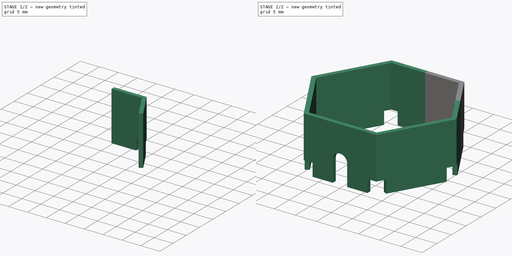
[diagram: build sequence overview — one tinted view per stage of 2, left to right]
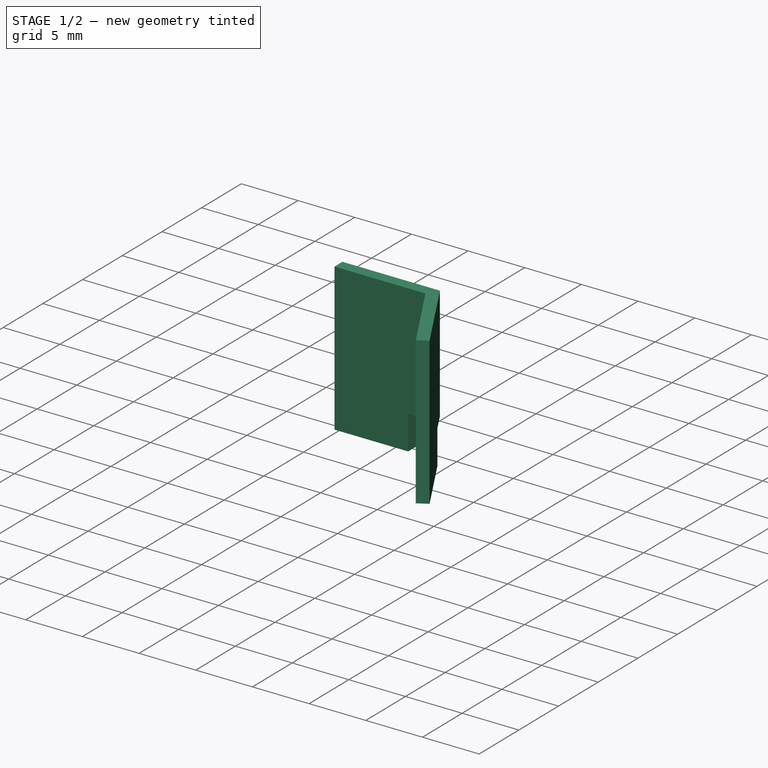
[diagram: stage 1 of 2 — iso view after this stage's code; geometry added in this stage tinted green]
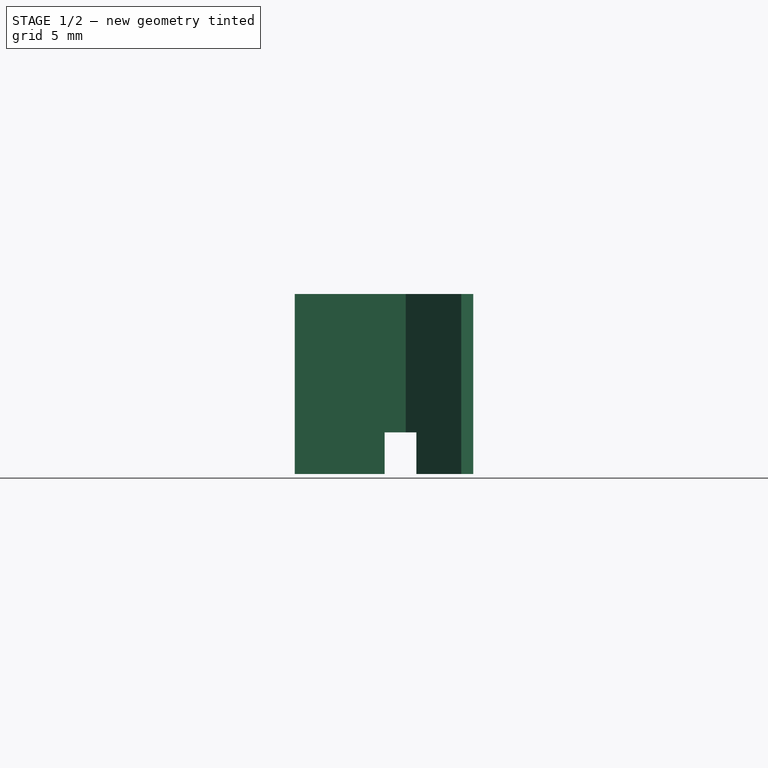
[diagram: stage 1 of 2 — front view after this stage's code; geometry added in this stage tinted green]
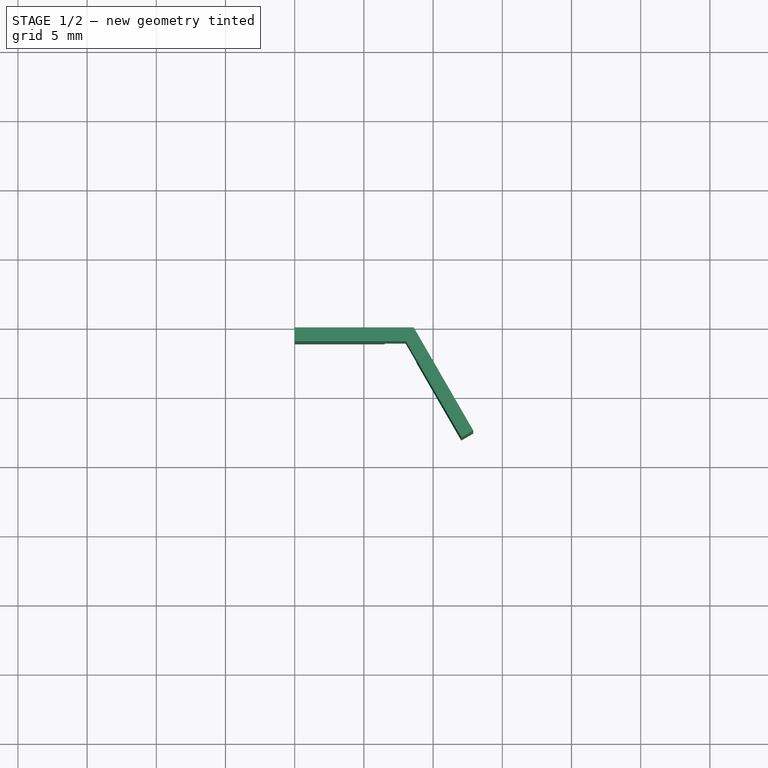
[diagram: stage 1 of 2 — top view after this stage's code; geometry added in this stage tinted green]
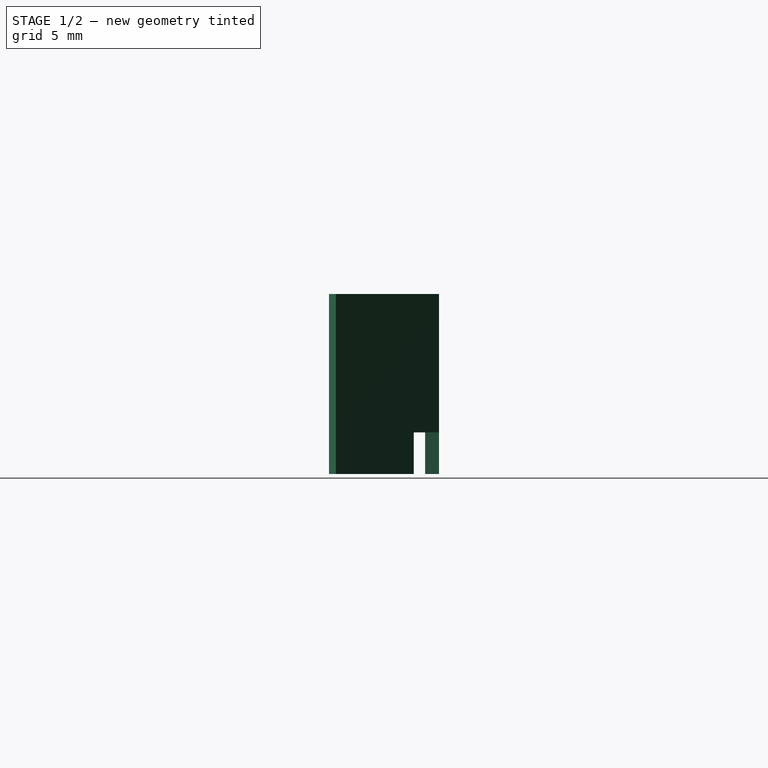
[diagram: stage 1 of 2 — right view after this stage's code; geometry added in this stage tinted green]
FCSTD DOCUMENT  (FreeCAD 0.19R23578 (Git))
Label: adapter1
License: All rights reserved
LicenseURL: http://en.wikipedia.org/wiki/All_rights_reserved
objects: Sketcher::SketchObject×3, PartDesign::Pocket×2, PartDesign::Pad×1, PartDesign::PolarPattern×1, PartDesign::Body×1
note: 11 computed .brp shape members not serialized (recipe doc carries the construction recipe); baked Part::Feature solids carry a one-line shape summary decoded from their .brp

FEATURE [Sketcher::SketchObject] Sketch
  MapMode = 5
  Support = -> [XY_Plane]
  sketch-geometry (21):
    g0: LineSegment StartX=17.205 StartY=1.8e-15 StartZ=0 EndX=8.60252 EndY=14.9 EndZ=0
    g1: LineSegment StartX=8.60252 StartY=14.9 StartZ=0 EndX=-8.60252 EndY=14.9 EndZ=0
    g2: LineSegment StartX=-8.60252 StartY=14.9 StartZ=0 EndX=-17.205 EndY=-1.8e-15 EndZ=0
    g3: LineSegment StartX=-17.205 StartY=-1.8e-15 StartZ=0 EndX=-8.60252 EndY=-14.9 EndZ=0
    g4: LineSegment StartX=-8.60252 StartY=-14.9 StartZ=0 EndX=8.60252 EndY=-14.9 EndZ=0
    g5: LineSegment StartX=8.60252 StartY=-14.9 StartZ=0 EndX=17.205 EndY=1.8e-15 EndZ=0
    g6: Circle CenterX=0 CenterY=0 CenterZ=0 NormalX=0 NormalY=0 NormalZ=1 AngleXU=0 Radius=17.205
    g7: LineSegment StartX=16.0503 StartY=0 StartZ=0 EndX=8.02517 EndY=13.9 EndZ=0
    g8: LineSegment StartX=8.02517 StartY=13.9 StartZ=0 EndX=-8.02517 EndY=13.9 EndZ=0
    g9: LineSegment StartX=-8.02517 StartY=13.9 StartZ=0 EndX=-16.0503 EndY=0 EndZ=0
    g10: LineSegment StartX=-16.0503 StartY=0 StartZ=0 EndX=-8.02517 EndY=-13.9 EndZ=0
    g11: LineSegment StartX=-8.02517 StartY=-13.9 StartZ=0 EndX=8.02517 EndY=-13.9 EndZ=0
    g12: LineSegment StartX=8.02517 StartY=-13.9 StartZ=0 EndX=16.0503 EndY=0 EndZ=0
    g13: Circle CenterX=0 CenterY=0 CenterZ=0 NormalX=0 NormalY=0 NormalZ=1 AngleXU=0 Radius=16.0503
    g14: LineSegment StartX=0 StartY=0 StartZ=0 EndX=12.9038 EndY=7.45 EndZ=0
    g15: LineSegment StartX=0 StartY=14.9 StartZ=0 EndX=8.60252 EndY=14.9 EndZ=0
    g16: LineSegment StartX=8.60252 StartY=14.9 StartZ=0 EndX=12.9038 EndY=7.45 EndZ=0
    g17: LineSegment StartX=12.9038 StartY=7.45 StartZ=0 EndX=12.0378 EndY=6.95 EndZ=0
    g18: LineSegment StartX=12.0378 StartY=6.95 StartZ=0 EndX=8.02517 EndY=13.9 EndZ=0
    g19: LineSegment StartX=8.02517 StartY=13.9 StartZ=0 EndX=0 EndY=13.9 EndZ=0
    g20: LineSegment StartX=0 StartY=13.9 StartZ=0 EndX=0 EndY=14.9 EndZ=0
  constraints (49):
    c: Coincident(g0,g1)
    c: Coincident(g1,g2)
    c: Coincident(g2,g3)
    c: Coincident(g3,g4)
    c: Coincident(g4,g5)
    c: Coincident(g5,g0)
    c: Equal(g0, g1-g5) x5
    c: PointOnObject(g0,g6)
    c: PointOnObject(g1,g6)
    c: PointOnObject(g2,g6)
    c: PointOnObject(g3,g6)
    c: PointOnObject(g4,g6)
    c: PointOnObject(g5,g6)
    c: Coincident(g6,g-1)
    c: PointOnObject(g5,g-1)
    c: DistanceY(g4,g0) = 29.8
    c: Coincident(g7,g8)
    c: Coincident(g8,g9)
    c: Coincident(g9,g10)
    c: Coincident(g10,g11)
    c: Coincident(g11,g12)
    c: Coincident(g12,g7)
    c: Equal(g7, g8-g12) x5
    c: PointOnObject(g7,g13)
    c: PointOnObject(g8,g13)
    c: PointOnObject(g9,g13)
    c: PointOnObject(g10,g13)
    c: PointOnObject(g11,g13)
    c: PointOnObject(g12,g13)
    c: Coincident(g13,g-1)
    c: PointOnObject(g12,g-1)
    c: DistanceY(g11,g7) = 27.8
    c: Coincident(g14,g-1)
    c: Symmetric(g0,g0,g14)
    c: PointOnObject(g15,g1)
    c: Coincident(g15,g0)
    c: Coincident(g15,g16)
    c: Coincident(g16,g14)
    c: Coincident(g16,g17)
    c: PointOnObject(g17,g14)
    c: Coincident(g17,g18)
    c: Coincident(g18,g19)
    c: PointOnObject(g19,g8)
    c: Coincident(g19,g20)
    c: Coincident(g20,g15)
    c: PointOnObject(g15,g-2)
    c: PointOnObject(g19,g-2)
    c: Coincident(g18,g7)
    c: PointOnObject(g17,g7)
FEATURE [PartDesign::Pad] Pad
  Direction = (1,1,1)
  Length = 13
  Length2 = 100
  Profile = -> Sketch
  Type = 0
FEATURE [Sketcher::SketchObject] Sketch001
  ExternalGeometry = -> [Pad]
  MapMode = 5
  Support = -> [XY_Plane]
  expr: Constraints[6] = 13 / 2
  sketch-geometry (4):
    g0: LineSegment StartX=6.5 StartY=11.2583 StartZ=0 EndX=11.7753 EndY=14.304 EndZ=0
    g1: LineSegment StartX=11.7753 StartY=14.304 StartZ=0 EndX=6.5 EndY=17.3497 EndZ=0
    g2: LineSegment StartX=6.5 StartY=17.3497 StartZ=0 EndX=6.5 EndY=11.2583 EndZ=0
    g3: LineSegment StartX=0 StartY=0 StartZ=0 EndX=8.60252 EndY=14.9 EndZ=0
  constraints (10):
    c: Coincident(g0,g1)
    c: Coincident(g1,g2)
    c: Coincident(g2,g0)
    c: Equal(g0,g1)
    c: Equal(g1,g2)
    c: Perpendicular(g-4,g0)
    c: DistanceX(g-1,g0) = 6.5
    c: Coincident(g3,g-1)
    c: Coincident(g3,g-4)
    c: PointOnObject(g0,g3)
FEATURE [PartDesign::Pocket] Pocket
  BaseFeature = -> Pad
  Length = 3
  Length2 = 100
  Profile = -> Sketch001
  Reversed = true
  Type = 0
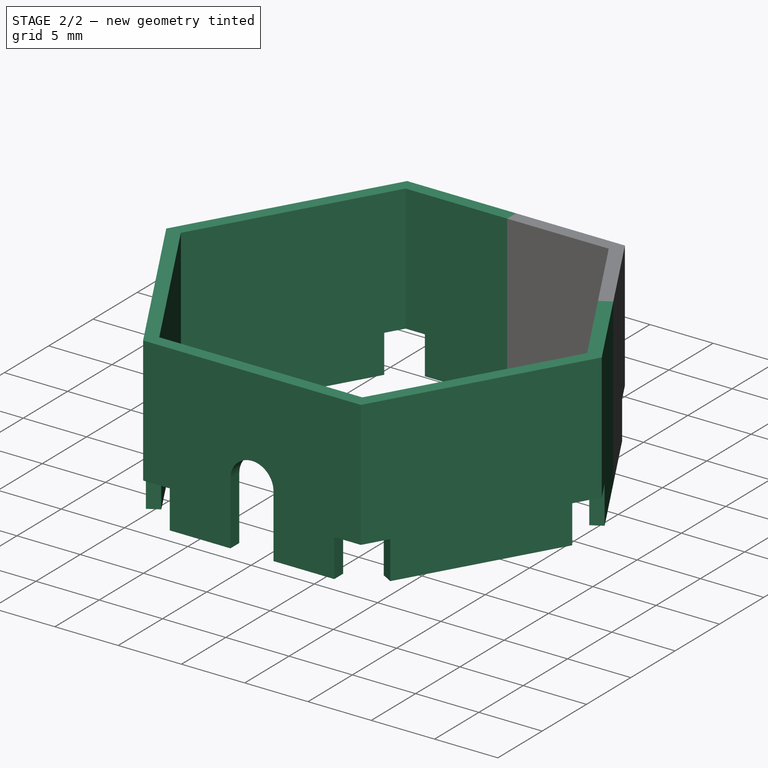
[diagram: stage 2 of 2 — iso view after this stage's code; geometry added in this stage tinted green]
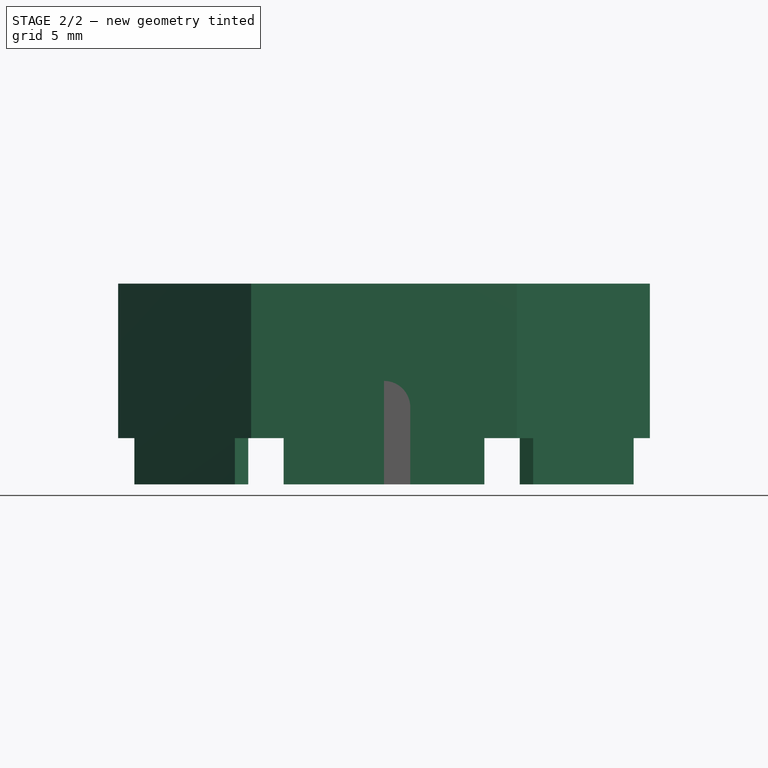
[diagram: stage 2 of 2 — front view after this stage's code; geometry added in this stage tinted green]
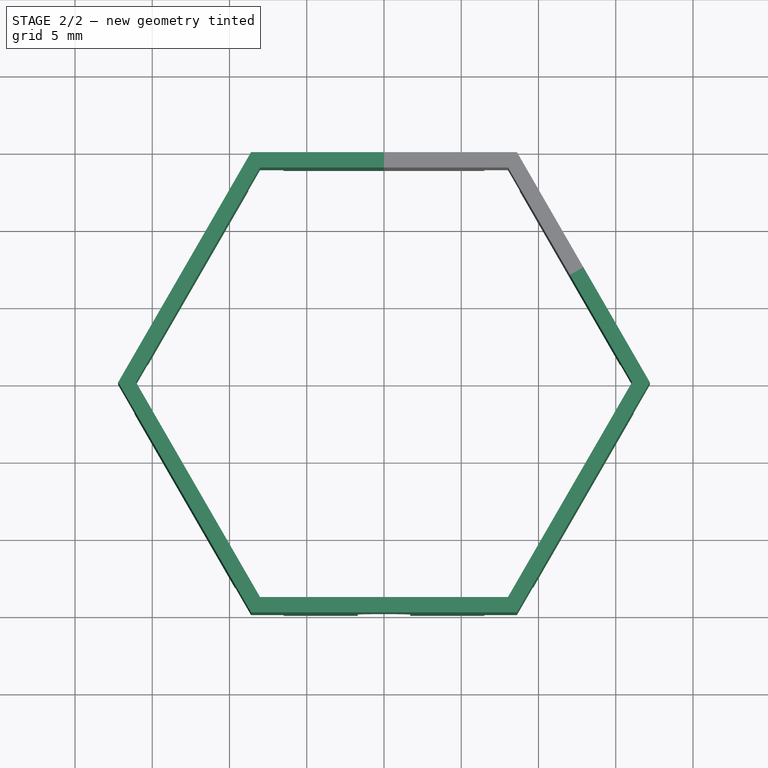
[diagram: stage 2 of 2 — top view after this stage's code; geometry added in this stage tinted green]
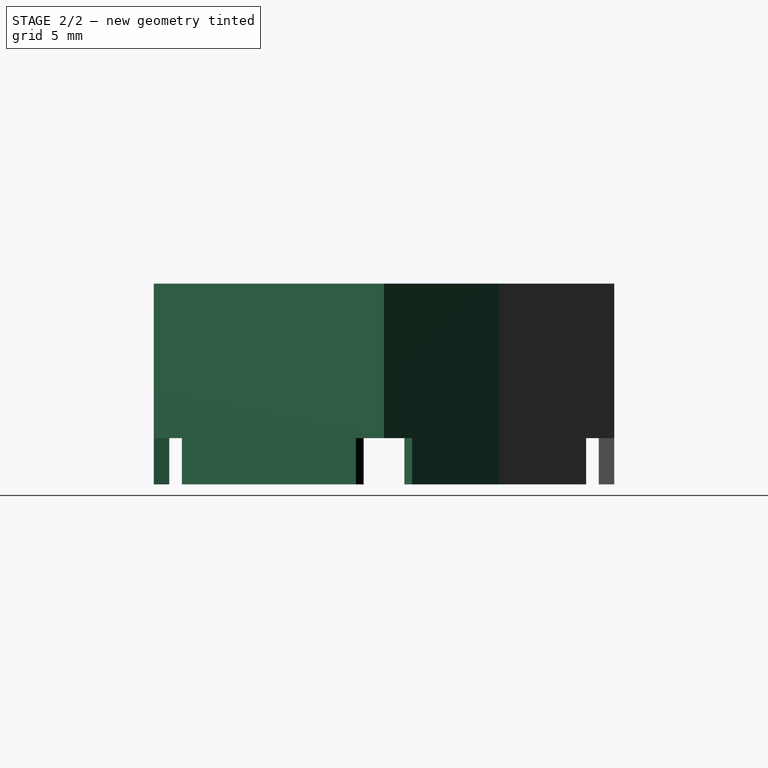
[diagram: stage 2 of 2 — right view after this stage's code; geometry added in this stage tinted green]
FEATURE [PartDesign::PolarPattern] PolarPattern
  Angle = 360
  Axis = -> Sketch [N_Axis]
  BaseFeature = -> Pocket
  Occurrences = 6
  Originals = -> [Pad,Pocket]
FEATURE [Sketcher::SketchObject] Sketch002
  MapMode = 5
  Placement = pos=(-1.8e-15,-14.9,0) rot=(1,0,0;1.5708rad)
  Support = -> [PolarPattern]
  expr: Constraints[10] = 5
  sketch-geometry (4):
    g0: ArcOfCircle CenterX=0 CenterY=5 CenterZ=0 NormalX=0 NormalY=0 NormalZ=1 AngleXU=0 Radius=1.7 StartAngle=1.018e-13 EndAngle=3.14159
    g1: LineSegment StartX=-1.7 StartY=5 StartZ=0 EndX=-1.7 EndY=0 EndZ=0
    g2: LineSegment StartX=-1.7 StartY=0 StartZ=0 EndX=1.7 EndY=0 EndZ=0
    g3: LineSegment StartX=1.7 StartY=0 StartZ=0 EndX=1.7 EndY=5 EndZ=0
  constraints (11):
    c: PointOnObject(g0,g-2)
    c: Tangent(g0,g1) = -1.5708
    c: Coincident(g1,g2)
    c: Horizontal(g2)
    c: Coincident(g2,g3)
    c: Vertical(g3)
    c: Tangent(g3,g0) = -1.5708
    c: Vertical(g1)
    c: PointOnObject(g1,g-1)
    c: DistanceX(g1,g2) = 3.4
    c: DistanceY(g2,g0) = 5
FEATURE [PartDesign::Pocket] Pocket001
  BaseFeature = -> PolarPattern
  Length = 2
  Length2 = 100
  Profile = -> Sketch002
  Type = 0
FEATURE [PartDesign::Body] Body
  Group = -> [Sketch,Pad,Sketch001,Pocket,PolarPattern,Sketch002,Pocket001]
  Origin = -> Origin
  Tip = -> Pocket001
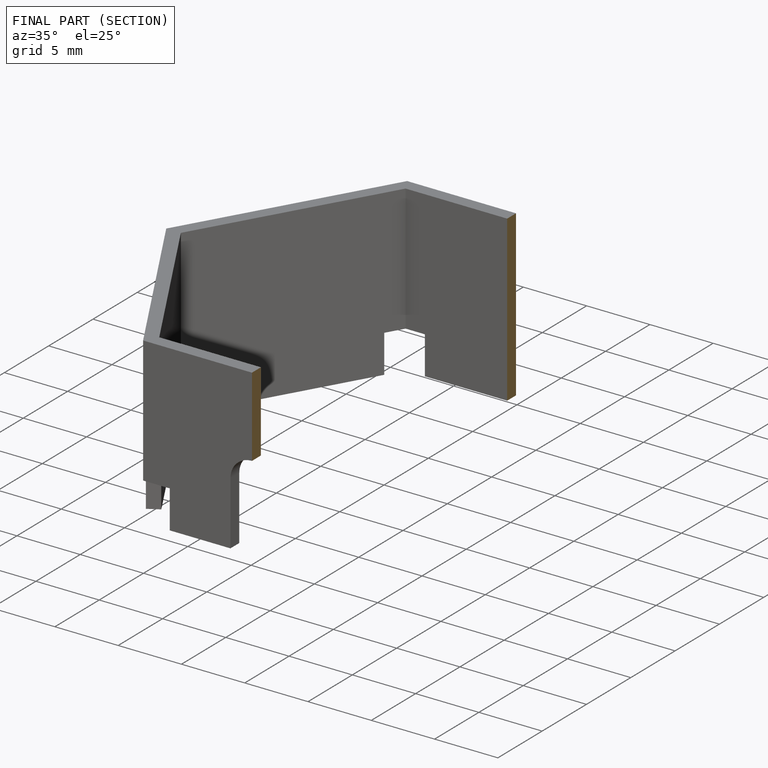
[diagram: finished part — half-section view (interior)]
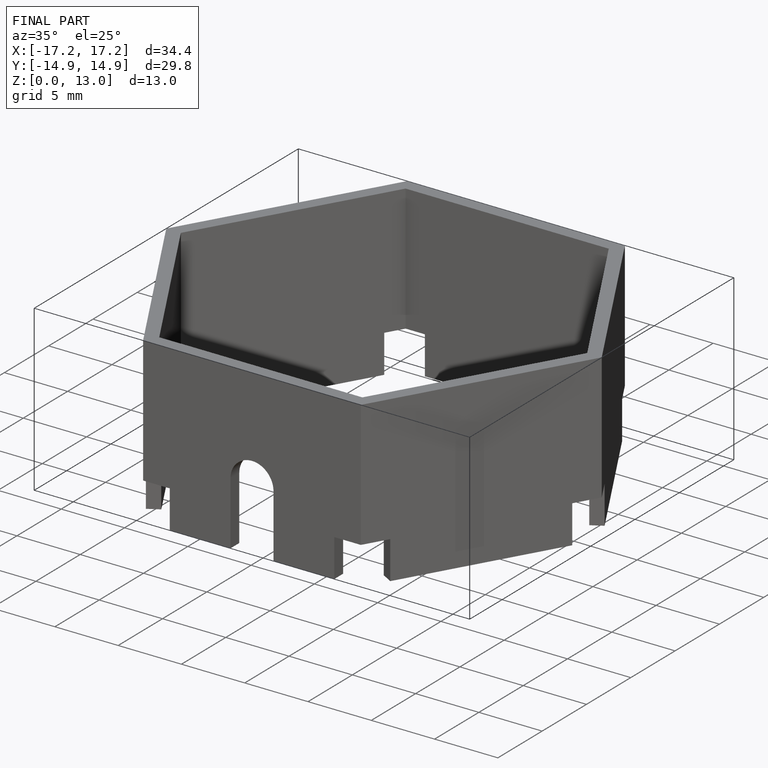
[diagram: finished part — iso view with bounding-box wireframe]
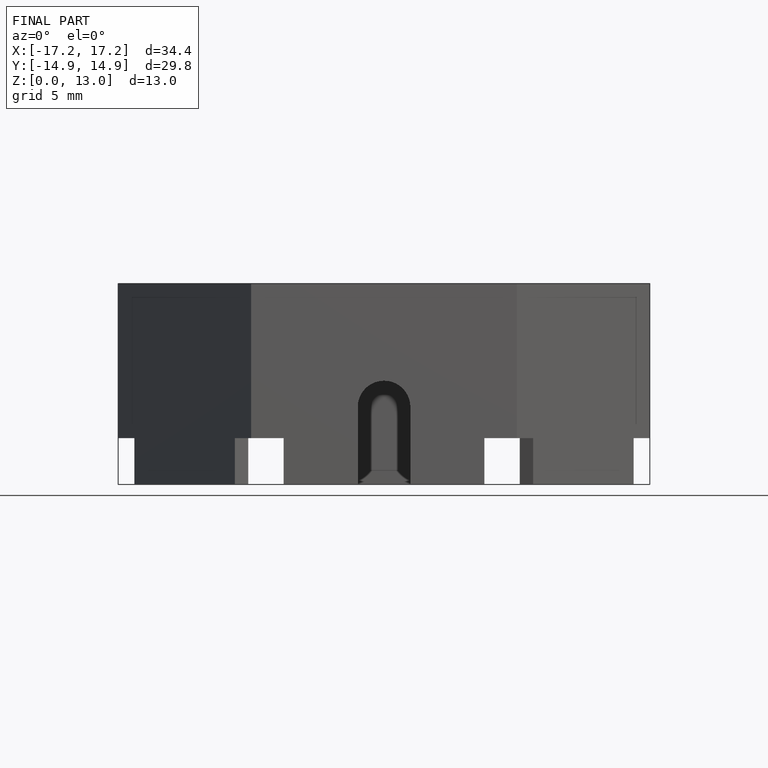
[diagram: finished part — front view with bounding-box wireframe]
